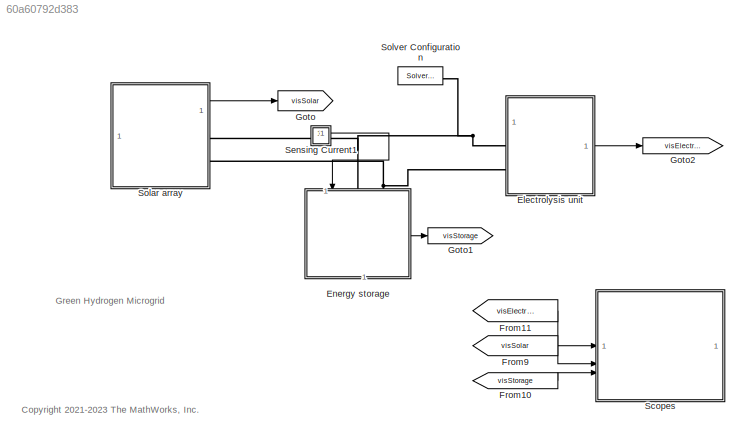
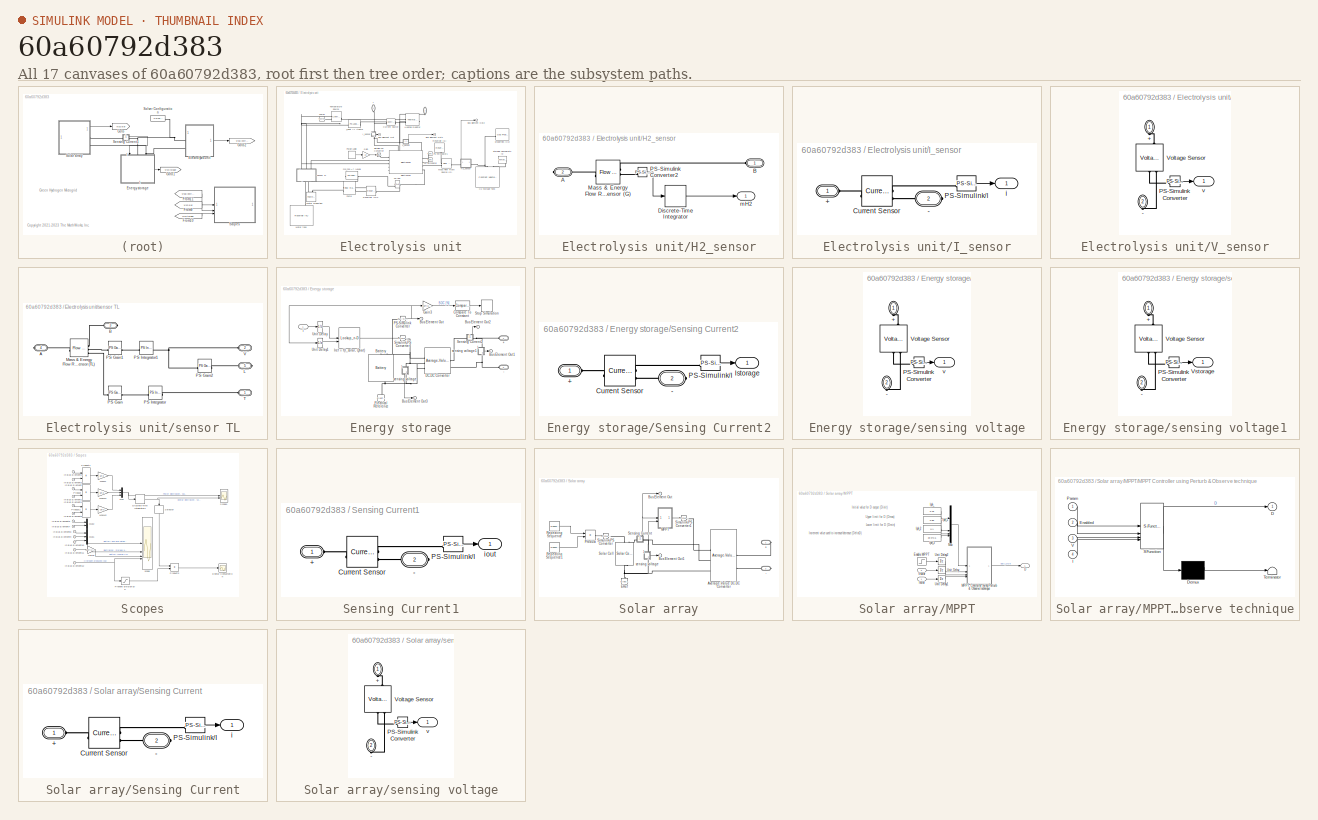
[diagram: thumbnail index - all 17 canvases of the model, root first then tree order]
MODEL slx_60a60792d383
KIND model
CONFIG AbsTol = 1e-3
CONFIG EnableMultiTasking = off
CONFIG FixedStep = Ts
CONFIG MaxStep = 0.1
CONFIG MinStep = auto
CONFIG PreLoadFcn = GreenHydrogenMicrogridData;
CONFIG RelTol = 1e-3
CONFIG SampleTimeConstraint = Unconstrained
CONFIG SolverName = FixedStepAuto
CONFIG StartTime = 0.0
CONFIG StopTime = 24*3600*7.5
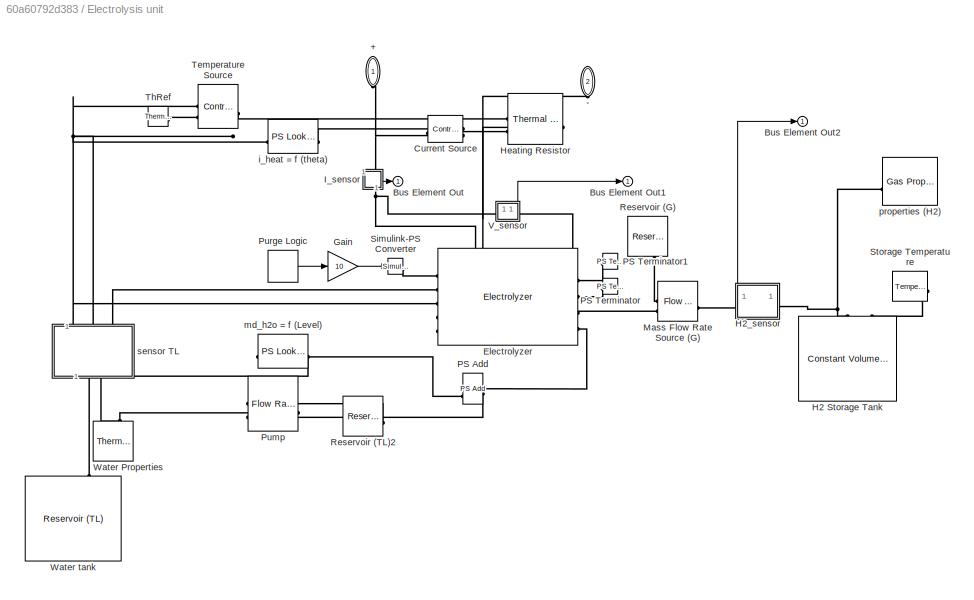
BLOCK [SubSystem] Electrolysis unit
BLOCK [PMIOPort] Electrolysis unit/+
  NameLocation = left
  Side = Left
BLOCK [PMIOPort] Electrolysis unit/-
  NameLocation = left
  Port = 2
  Side = Left
BLOCK [Outport] Electrolysis unit/Bus Element Out
BLOCK [Outport] Electrolysis unit/Bus Element Out1
BLOCK [Outport] Electrolysis unit/Bus Element Out2
BLOCK [Reference] Electrolysis unit/Current Source  REF=fl_lib/Electrical/Electrical Sources/Controlled Current
Source
  SourceBlock = fl_lib/Electrical/Electrical Sources/Controlled Current\nSource
  SourceType = Controlled Current\nSource
BLOCK [Reference] Electrolysis unit/Electrolyzer  REF=ee_lib/Sources/Electrolyzer
  SourceBlock = ee_lib/Sources/Electrolyzer
  SourceType = Electrolyzer
BLOCK [Gain] Electrolysis unit/Gain
  Gain = 10
BLOCK [Reference] Electrolysis unit/H2 Storage Tank  REF=fl_lib/Gas/Elements/Constant Volume
Chamber (G)
  SourceBlock = fl_lib/Gas/Elements/Constant Volume\nChamber (G)
  SourceType = Constant Volume\nChamber (G)
BLOCK [SubSystem] Electrolysis unit/H2_sensor
  PortSchema = {"entries":[{"content":{"sides":[{"content":{"connectorIds":["LConn1"]},"type":"ConnectorPlacement.EquallySpacedRectSide","uuid":"e3c1304f-b602-4c8c-83ae-2fd3882be16e"},{"content":{"connectorIds":["RConn1"],"side":"RIGHT"},"type":"ConnectorPlacement.EquallySpacedRectSide","uuid":"8d7546a0-f580-4754-b3ac-0546585847f9"},{"content":{"connectorIds":["Out1"],"side":"TOP"},"type":"ConnectorPlacement.Equ...<+251ch>  <repeated x4 — deduplicated; at blocks: H2_sensor, V_sensor, Sensing Current2, Sensing Current>
BLOCK [PMIOPort] Electrolysis unit/H2_sensor/A
  Port = 2
  Side = Right
BLOCK [PMIOPort] Electrolysis unit/H2_sensor/B
  Side = Left
BLOCK [DiscreteIntegrator] Electrolysis unit/H2_sensor/Discrete-Time Integrator
  ICPrevOutput = DiscIntNeverNeededParam
  ICPrevScaledInput = DiscIntNeverNeededParam
  InitialConditionSetting = Auto
  SampleTime = Ts
  gainval = 1/3600
BLOCK [Reference] Electrolysis unit/H2_sensor/Mass & Energy Flow Rate Sensor (G)  REF=fl_lib/Gas/Sensors/Flow Rate Sensor (G)
  SourceBlock = fl_lib/Gas/Sensors/Flow Rate Sensor (G)
  SourceType = Flow Rate Sensor (G)
BLOCK [Reference] Electrolysis unit/H2_sensor/PS-Simulink Converter2  REF=nesl_utility/PS-Simulink
Converter
  SourceBlock = nesl_utility/PS-Simulink\nConverter
  SourceType = PS-Simulink\nConverter
BLOCK [Outport] Electrolysis unit/H2_sensor/mH2
BLOCK [Reference] Electrolysis unit/Heating Resistor  REF=fl_lib/Electrical/Electrical Elements/Thermal Resistor
  AttributesFormatString = Heating \nResistor
  NameLocation = top
  SourceBlock = fl_lib/Electrical/Electrical Elements/Thermal Resistor
  SourceType = Thermal Resistor
BLOCK [SubSystem] Electrolysis unit/I_sensor
  NameLocation = left
  PortSchema = {"entries":[{"content":{"sides":[{"content":{"connectorIds":["LConn1"]},"type":"ConnectorPlacement.EquallySpacedRectSide","uuid":"e3c1304f-b602-4c8c-83ae-2fd3882be16e"},{"content":{"connectorIds":["RConn1"],"side":"RIGHT"},"type":"ConnectorPlacement.EquallySpacedRectSide","uuid":"8d7546a0-f580-4754-b3ac-0546585847f9"},{"content":{"connectorIds":[],"side":"TOP"},"type":"ConnectorPlacement.EquallySp...<+395ch>  <repeated x4 — deduplicated; at blocks: I_sensor, sensing voltage1, Sensing Current1, sensing voltage>
BLOCK [PMIOPort] Electrolysis unit/I_sensor/+
  Side = Left
BLOCK [PMIOPort] Electrolysis unit/I_sensor/-
  Port = 2
  Side = Right
BLOCK [Reference] Electrolysis unit/I_sensor/Current Sensor  REF=fl_lib/Electrical/Electrical Sensors/Current Sensor
  SourceBlock = fl_lib/Electrical/Electrical Sensors/Current Sensor
  SourceType = Current Sensor
BLOCK [Reference] Electrolysis unit/I_sensor/PS-Simulink//I  REF=nesl_utility/PS-Simulink
Converter
  SourceBlock = nesl_utility/PS-Simulink\nConverter
  SourceType = PS-Simulink\nConverter
BLOCK [Outport] Electrolysis unit/I_sensor/i
BLOCK [Reference] Electrolysis unit/Mass Flow Rate Source (G)  REF=fl_lib/Gas/Sources/Flow Rate Source (G)
  SourceBlock = fl_lib/Gas/Sources/Flow Rate Source (G)
  SourceType = Flow Rate Source (G)
BLOCK [Reference] Electrolysis unit/PS Add  REF=fl_lib/Physical Signals/Functions/PS Add
  NameLocation = top
  SourceBlock = fl_lib/Physical Signals/Functions/PS Add
  SourceType = PS Add
BLOCK [Reference] Electrolysis unit/PS Terminator  REF=fl_lib/Physical Signals/Sinks/PS Terminator
  SourceBlock = fl_lib/Physical Signals/Sinks/PS Terminator
  SourceType = PS Terminator
BLOCK [Reference] Electrolysis unit/PS Terminator1  REF=fl_lib/Physical Signals/Sinks/PS Terminator
  SourceBlock = fl_lib/Physical Signals/Sinks/PS Terminator
  SourceType = PS Terminator
BLOCK [Reference] Electrolysis unit/Pump  REF=fl_lib/Thermal Liquid/Sources/Flow Rate Source
(TL)
  SourceBlock = fl_lib/Thermal Liquid/Sources/Flow Rate Source\n(TL)
  SourceType = Flow Rate Source\n(TL)
BLOCK [DiscretePulseGenerator] Electrolysis unit/Purge Logic
  NameLocation = top
  Period = 3600*24*1
  PulseType = Time based
  PulseWidth = 15
BLOCK [Reference] Electrolysis unit/Reservoir (G)  REF=fl_lib/Gas/Elements/Reservoir (G)
  NameLocation = right
  SourceBlock = fl_lib/Gas/Elements/Reservoir (G)
  SourceType = Reservoir (G)
BLOCK [Reference] Electrolysis unit/Reservoir (TL)2  REF=fl_lib/Thermal Liquid/Elements/Reservoir (TL)
  SourceBlock = fl_lib/Thermal Liquid/Elements/Reservoir (TL)
  SourceType = Reservoir (TL)
BLOCK [Reference] Electrolysis unit/Simulink-PS Converter  REF=nesl_utility/Simulink-PS
Converter
  SourceBlock = nesl_utility/Simulink-PS\nConverter
  SourceType = Simulink-PS\nConverter
BLOCK [Reference] Electrolysis unit/Storage Temperature  REF=fl_lib/Thermal/Thermal Sources/Temperature Source
  NameLocation = top
  SourceBlock = fl_lib/Thermal/Thermal Sources/Temperature Source
  SourceType = Temperature Source
BLOCK [Reference] Electrolysis unit/Temperature Source  REF=fl_lib/Thermal/Thermal Sources/Controlled
Temperature Source
  NameLocation = top
  SourceBlock = fl_lib/Thermal/Thermal Sources/Controlled\nTemperature Source
  SourceType = Controlled\nTemperature Source
BLOCK [Reference] Electrolysis unit/ThRef  REF=fl_lib/Thermal/Thermal Elements/Thermal Reference
  SourceBlock = fl_lib/Thermal/Thermal Elements/Thermal Reference
  SourceType = Thermal Reference
BLOCK [SubSystem] Electrolysis unit/V_sensor
BLOCK [PMIOPort] Electrolysis unit/V_sensor/+
  NameLocation = left
  Side = Left
BLOCK [PMIOPort] Electrolysis unit/V_sensor/-
  NameLocation = left
  Port = 2
  Side = Right
BLOCK [Reference] Electrolysis unit/V_sensor/PS-Simulink Converter  REF=nesl_utility/PS-Simulink
Converter
  SourceBlock = nesl_utility/PS-Simulink\nConverter
  SourceType = PS-Simulink\nConverter
BLOCK [Reference] Electrolysis unit/V_sensor/Voltage Sensor  REF=fl_lib/Electrical/Electrical Sensors/Voltage Sensor
  NameLocation = right
  SourceBlock = fl_lib/Electrical/Electrical Sensors/Voltage Sensor
  SourceType = Voltage Sensor
BLOCK [Outport] Electrolysis unit/V_sensor/v
BLOCK [Reference] Electrolysis unit/Water Properties  REF=fl_lib/Thermal Liquid/Utilities/Thermal Liquid
Settings (TL)
  NameLocation = right
  SourceBlock = fl_lib/Thermal Liquid/Utilities/Thermal Liquid\nSettings (TL)
  SourceType = Thermal Liquid\nSettings (TL)
BLOCK [Reference] Electrolysis unit/Water tank  REF=fl_lib/Thermal Liquid/Elements/Reservoir (TL)
  NameLocation = right
  SourceBlock = fl_lib/Thermal Liquid/Elements/Reservoir (TL)
  SourceType = Reservoir (TL)
BLOCK [Reference] Electrolysis unit/i_heat = f (theta)  REF=fl_lib/Physical Signals/Lookup Tables/PS Lookup Table (1D)
  SourceBlock = fl_lib/Physical Signals/Lookup Tables/PS Lookup Table (1D)
  SourceType = PS Lookup Table (1D)
BLOCK [Reference] Electrolysis unit/md_h2o = f (Level)  REF=fl_lib/Physical Signals/Lookup Tables/PS Lookup Table (1D)
  SourceBlock = fl_lib/Physical Signals/Lookup Tables/PS Lookup Table (1D)
  SourceType = PS Lookup Table (1D)
BLOCK [Reference] Electrolysis unit/properties (H2)  REF=fl_lib/Gas/Utilities/Gas Properties (G)
  SourceBlock = fl_lib/Gas/Utilities/Gas Properties (G)
  SourceType = Gas Properties (G)
BLOCK [SubSystem] Electrolysis unit/sensor TL
  NameLocation = left
  PortSchema = {"entries":[{"content":{"sides":[{"content":{"connectorIds":["LConn1","LConn2"]},"type":"ConnectorPlacement.EquallySpacedRectSide","uuid":"7b98331b-f6fd-43b9-b8c3-5b84acb89757"},{"content":{"connectorIds":["RConn1","RConn2"],"side":"RIGHT"},"type":"ConnectorPlacement.EquallySpacedRectSide","uuid":"402dd483-774c-47a3-8562-2ee7de39df32"},{"content":{"connectorIds":[],"side":"TOP"},"type":"ConnectorP...<+415ch>
BLOCK [PMIOPort] Electrolysis unit/sensor TL/A
  Port = 4
  Side = Right
BLOCK [PMIOPort] Electrolysis unit/sensor TL/B
  Port = 3
  Side = Right
BLOCK [PMIOPort] Electrolysis unit/sensor TL/L
  Port = 5
  Side = Right
BLOCK [Reference] Electrolysis unit/sensor TL/Mass & Energy Flow Rate Sensor (TL)  REF=fl_lib/Thermal Liquid/Sensors/Flow Rate Sensor
(TL)
  SourceBlock = fl_lib/Thermal Liquid/Sensors/Flow Rate Sensor\n(TL)
  SourceType = Flow Rate Sensor\n(TL)
BLOCK [Reference] Electrolysis unit/sensor TL/PS Gain  REF=fl_lib/Physical Signals/Functions/PS Gain
  SourceBlock = fl_lib/Physical Signals/Functions/PS Gain
  SourceType = PS Gain
BLOCK [Reference] Electrolysis unit/sensor TL/PS Gain1  REF=fl_lib/Physical Signals/Functions/PS Gain
  SourceBlock = fl_lib/Physical Signals/Functions/PS Gain
  SourceType = PS Gain
BLOCK [Reference] Electrolysis unit/sensor TL/PS Gain2  REF=fl_lib/Physical Signals/Functions/PS Gain
  SourceBlock = fl_lib/Physical Signals/Functions/PS Gain
  SourceType = PS Gain
BLOCK [Reference] Electrolysis unit/sensor TL/PS Integrator  REF=fl_lib/Physical Signals/Linear Operators/PS Integrator
  SourceBlock = fl_lib/Physical Signals/Linear Operators/PS Integrator
  SourceType = PS Integrator
BLOCK [Reference] Electrolysis unit/sensor TL/PS Integrator1  REF=fl_lib/Physical Signals/Linear Operators/PS Integrator
  SourceBlock = fl_lib/Physical Signals/Linear Operators/PS Integrator
  SourceType = PS Integrator
BLOCK [PMIOPort] Electrolysis unit/sensor TL/T
  Side = Left
BLOCK [PMIOPort] Electrolysis unit/sensor TL/V
  Port = 2
  Side = Left
BLOCK [SubSystem] Energy storage
  PortSchema = {"entries":[{"content":{"sides":[{"content":{"connectorIds":["In1","LConn1","LConn2"]},"type":"ConnectorPlacement.EquallySpacedRectSide","uuid":"9735ae67-ee5d-404d-b05d-be32c633d108"},{"content":{"connectorIds":[],"side":"RIGHT"},"type":"ConnectorPlacement.EquallySpacedRectSide","uuid":"d60100ac-ad33-48fb-ae9c-ece9d5c3c2d8"},{"content":{"connectorIds":[],"side":"TOP"},"type":"ConnectorPlacement.Eq...<+402ch>
BLOCK [PMIOPort] Energy storage/+
  NameLocation = top
  Side = Left
BLOCK [PMIOPort] Energy storage/-
  Port = 2
  Side = Left
BLOCK [Reference] Energy storage/Battery  REF=batteryecm_lib/Battery
  NameLocation = left
  SourceBlock = batteryecm_lib/Battery
  SourceType = Battery
BLOCK [Outport] Energy storage/Bus Element Out
BLOCK [Outport] Energy storage/Bus Element Out1
BLOCK [Outport] Energy storage/Bus Element Out2
BLOCK [Outport] Energy storage/Bus Element Out3
BLOCK [Reference] Energy storage/Compare To Constant  REF=simulink/Logic and Bit
Operations/Compare
To Constant
  SourceBlock = simulink/Logic and Bit\nOperations/Compare\nTo Constant
  SourceType = Compare To Constant
BLOCK [Reference] Energy storage/DC-DC Converter  REF=ee_lib/Semiconductors &
Converters/Converters/Average-Value DC-DC
Converter
  SourceBlock = ee_lib/Semiconductors &\nConverters/Converters/Average-Value DC-DC\nConverter
  SourceType = Average-Value DC-DC\nConverter
BLOCK [Reference] Energy storage/Electrical Reference  REF=fl_lib/Electrical/Electrical Elements/Electrical Reference
  NameLocation = right
  SourceBlock = fl_lib/Electrical/Electrical Elements/Electrical Reference
  SourceType = Electrical Reference
BLOCK [Gain] Energy storage/Gain3
  Gain = 100*(1/Battery.Qn)
BLOCK [Lookup_n-D] Energy storage/Iref = f(I_solar, Qbat)
  BreakpointsForDimension1 = Operation_Ref.Isolar
  BreakpointsForDimension2 = [0 0.5 0.875 1]*Battery.Qn
  InputPortMap = u0,u1
  InternalRulePriority = Speed
  RndMeth = Simplest
  Table = [0*Operation_Ref.Ie;0.25*Operation_Ref.Ie;0.75*Operation_Ref.Ie;Operation_Ref.Ie]'
BLOCK [Reference] Energy storage/PS-Simulink Converter  REF=nesl_utility/PS-Simulink
Converter
  SourceBlock = nesl_utility/PS-Simulink\nConverter
  SourceType = PS-Simulink\nConverter
BLOCK [SubSystem] Energy storage/Sensing Current2
BLOCK [PMIOPort] Energy storage/Sensing Current2/+
  Side = Left
BLOCK [PMIOPort] Energy storage/Sensing Current2/-
  Port = 2
  Side = Right
BLOCK [Reference] Energy storage/Sensing Current2/Current Sensor  REF=fl_lib/Electrical/Electrical Sensors/Current Sensor
  SourceBlock = fl_lib/Electrical/Electrical Sensors/Current Sensor
  SourceType = Current Sensor
BLOCK [Outport] Energy storage/Sensing Current2/Istorage
BLOCK [Reference] Energy storage/Sensing Current2/PS-Simulink//I  REF=nesl_utility/PS-Simulink
Converter
  SourceBlock = nesl_utility/PS-Simulink\nConverter
  SourceType = PS-Simulink\nConverter
BLOCK [Reference] Energy storage/Simulink-PS Converter  REF=nesl_utility/Simulink-PS
Converter
  SourceBlock = nesl_utility/Simulink-PS\nConverter
  SourceType = Simulink-PS\nConverter
BLOCK [Stop] Energy storage/Stop Simulation
BLOCK [UnitDelay] Energy storage/Unit Delay
  HasFrameUpgradeWarning = on
  SampleTime = -1
BLOCK [UnitDelay] Energy storage/Unit Delay1
  HasFrameUpgradeWarning = on
  InitialCondition = Battery.Qinit
  SampleTime = -1
BLOCK [Inport] Energy storage/i
BLOCK [SubSystem] Energy storage/sensing voltage
  NameLocation = left
BLOCK [PMIOPort] Energy storage/sensing voltage/+
  NameLocation = left
  Side = Left
BLOCK [PMIOPort] Energy storage/sensing voltage/-
  NameLocation = left
  Port = 2
  Side = Right
BLOCK [Reference] Energy storage/sensing voltage/PS-Simulink Converter  REF=nesl_utility/PS-Simulink
Converter
  SourceBlock = nesl_utility/PS-Simulink\nConverter
  SourceType = PS-Simulink\nConverter
BLOCK [Reference] Energy storage/sensing voltage/Voltage Sensor  REF=fl_lib/Electrical/Electrical Sensors/Voltage Sensor
  NameLocation = right
  SourceBlock = fl_lib/Electrical/Electrical Sensors/Voltage Sensor
  SourceType = Voltage Sensor
BLOCK [Outport] Energy storage/sensing voltage/v
BLOCK [SubSystem] Energy storage/sensing voltage1
  NameLocation = left
BLOCK [PMIOPort] Energy storage/sensing voltage1/+
  NameLocation = left
  Side = Left
BLOCK [PMIOPort] Energy storage/sensing voltage1/-
  NameLocation = left
  Port = 2
  Side = Right
BLOCK [Reference] Energy storage/sensing voltage1/PS-Simulink Converter  REF=nesl_utility/PS-Simulink
Converter
  SourceBlock = nesl_utility/PS-Simulink\nConverter
  SourceType = PS-Simulink\nConverter
BLOCK [Reference] Energy storage/sensing voltage1/Voltage Sensor  REF=fl_lib/Electrical/Electrical Sensors/Voltage Sensor
  NameLocation = right
  SourceBlock = fl_lib/Electrical/Electrical Sensors/Voltage Sensor
  SourceType = Voltage Sensor
BLOCK [Outport] Energy storage/sensing voltage1/Vstorage
BLOCK [From] From10
  GotoTag = visStorage
BLOCK [From] From11
  GotoTag = visElectrolyzer
BLOCK [From] From9
  GotoTag = visSolar
BLOCK [Goto] Goto
  GotoTag = visSolar
BLOCK [Goto] Goto1
  GotoTag = visStorage
BLOCK [Goto] Goto2
  GotoTag = visElectrolyzer
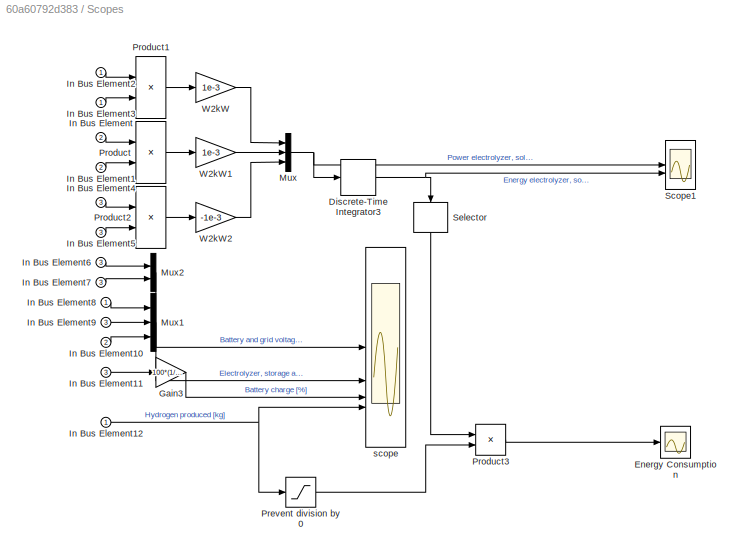
BLOCK [SubSystem] Scopes
BLOCK [DiscreteIntegrator] Scopes/Discrete-Time Integrator3
  ICPrevOutput = DiscIntNeverNeededParam
  ICPrevScaledInput = DiscIntNeverNeededParam
  InitialConditionSetting = Auto
  SampleTime = -1
  gainval = 1/3600
BLOCK [Scope] Scopes/Energy Consumption
  AttributesFormatString = [kWh / kg H2]
  Floating = off
  NumInputPorts = 1
  ScopeSpecificationString = Simulink.scopes.TimeScopeBlockCfg('CurrentConfiguration', extmgr.ConfigurationSet(extmgr.Configuration('Core','General UI',true),extmgr.Configuration('Core','Source UI',true),extmgr.Configuration('Sources','WiredSimulink',true,'DataLoggingVariableName','ScopeData1'),extmgr.Configuration('Visuals','Time Domain',true,'SerializedDisplays',{struct('MinYLimReal','-8.1004','MaxYLimReal','72.90356','YLab...<+1472ch>
BLOCK [Gain] Scopes/Gain3
  Gain = 100*(1/Battery.Qn)
BLOCK [Inport] Scopes/In Bus Element
  Port = 2
BLOCK [Inport] Scopes/In Bus Element1
  Port = 2
BLOCK [Inport] Scopes/In Bus Element10
  Port = 2
BLOCK [Inport] Scopes/In Bus Element11
  Port = 3
BLOCK [Inport] Scopes/In Bus Element12
BLOCK [Inport] Scopes/In Bus Element2
BLOCK [Inport] Scopes/In Bus Element3
BLOCK [Inport] Scopes/In Bus Element4
  Port = 3
BLOCK [Inport] Scopes/In Bus Element5
  Port = 3
BLOCK [Inport] Scopes/In Bus Element6
  Port = 3
BLOCK [Inport] Scopes/In Bus Element7
  Port = 3
BLOCK [Inport] Scopes/In Bus Element8
BLOCK [Inport] Scopes/In Bus Element9
  Port = 3
BLOCK [Mux] Scopes/Mux
  DisplayOption = bar
  Inputs = 3
BLOCK [Mux] Scopes/Mux1
  DisplayOption = bar
  Inputs = 3
BLOCK [Mux] Scopes/Mux2
  DisplayOption = bar
  Inputs = 2
BLOCK [Saturate] Scopes/Prevent division by 0
  LowerLimit = 1e-4
  UpperLimit = inf
BLOCK [Product] Scopes/Product
BLOCK [Product] Scopes/Product1
BLOCK [Product] Scopes/Product2
BLOCK [Product] Scopes/Product3
  Inputs = */
BLOCK [Scope] Scopes/Scope1
  AttributesFormatString = Power\nEnergy
  Floating = off
  NumInputPorts = 2
  ScopeSpecificationString = Simulink.scopes.TimeScopeBlockCfg('CurrentConfiguration', extmgr.ConfigurationSet(extmgr.Configuration('Core','General UI',true),extmgr.Configuration('Core','Source UI',true),extmgr.Configuration('Sources','WiredSimulink',true,'DataLoggingVariableName','ScopeData1'),extmgr.Configuration('Visuals','Time Domain',true,'SerializedDisplays',{struct('MinYLimReal','-52.76446','MaxYLimReal','231.1683','YL...<+2121ch>
BLOCK [Selector] Scopes/Selector
  IndexOptions = Index vector (dialog)
  Indices = 1
  InputPortWidth = 3
  NameLocation = left
  OutputSizes = 1
BLOCK [Gain] Scopes/W2kW
  Gain = 1e-3
BLOCK [Gain] Scopes/W2kW1
  Gain = 1e-3
BLOCK [Gain] Scopes/W2kW2
  Gain = -1e-3
BLOCK [Scope] Scopes/scope
  AttributesFormatString = V - I\nCharge [%]\nH2 [kg]
  Floating = off
  NumInputPorts = 4
  ScopeSpecificationString = Simulink.scopes.TimeScopeBlockCfg('CurrentConfiguration', extmgr.ConfigurationSet(extmgr.Configuration('Core','General UI',true),extmgr.Configuration('Core','Source UI',true),extmgr.Configuration('Sources','WiredSimulink',true),extmgr.Configuration('Visuals','Time Domain',true,'SerializedDisplays',{struct('MinYLimReal','211.75861','MaxYLimReal','247.26216','YLabelReal','','MinYLimMag','211.75861',...<+3549ch>
BLOCK [SubSystem] Sensing Current1
BLOCK [PMIOPort] Sensing Current1/+
  Side = Left
BLOCK [PMIOPort] Sensing Current1/-
  Port = 2
  Side = Right
BLOCK [Reference] Sensing Current1/Current Sensor  REF=fl_lib/Electrical/Electrical Sensors/Current Sensor
  SourceBlock = fl_lib/Electrical/Electrical Sensors/Current Sensor
  SourceType = Current Sensor
BLOCK [Reference] Sensing Current1/PS-Simulink//I  REF=nesl_utility/PS-Simulink
Converter
  SourceBlock = nesl_utility/PS-Simulink\nConverter
  SourceType = PS-Simulink\nConverter
BLOCK [Outport] Sensing Current1/iout
BLOCK [SubSystem] Solar array
BLOCK [PMIOPort] Solar array/+
  Side = Right
BLOCK [PMIOPort] Solar array/-
  Port = 2
  Side = Right
BLOCK [Reference] Solar array/Average-Value DC-DC Converter  REF=ee_lib/Semiconductors &
Converters/Converters/Average-Value DC-DC
Converter
  SourceBlock = ee_lib/Semiconductors &\nConverters/Converters/Average-Value DC-DC\nConverter
  SourceType = Average-Value DC-DC\nConverter
BLOCK [Outport] Solar array/Bus Element Out
BLOCK [Outport] Solar array/Bus Element Out1
BLOCK [Reference] Solar array/ERef  REF=fl_lib/Electrical/Electrical Elements/Electrical Reference
  NameLocation = right
  SourceBlock = fl_lib/Electrical/Electrical Elements/Electrical Reference
  SourceType = Electrical Reference
BLOCK [SubSystem] Solar array/MPPT
BLOCK [Outport] Solar array/MPPT/D
BLOCK [Step] Solar array/MPPT/Enable MPPT
  NameLocation = top
  SampleTime = 0
  Time = 0.1
BLOCK [Constant] Solar array/MPPT/Iph_
  Value = 0.45
BLOCK [Constant] Solar array/MPPT/Iph_1
  Value = 0.85
BLOCK [Constant] Solar array/MPPT/Iph_2
  Value = 0.1
BLOCK [Constant] Solar array/MPPT/Iph_3
  Value = 3e-3*0.5
BLOCK [Inport] Solar array/MPPT/Isolar
BLOCK [SubSystem] Solar array/MPPT/MPPT Controller using Perturb & Observe technique
  ErrorFcn = Stateflow.Translate.translate
  LibrarySourceBlock = simulink/User-Defined\nFunctions/MATLAB Function
  PermitHierarchicalResolution = ExplicitOnly
  SFBlockType = MATLAB Function
  TreatAsAtomicUnit = on
BLOCK [Demux] Solar array/MPPT/MPPT Controller using Perturb & Observe technique/ Demux 
  Outputs = 1
BLOCK [S-Function] Solar array/MPPT/MPPT Controller using Perturb & Observe technique/ SFunction 
  EnableBusSupport = on
  FunctionName = sf_sfun
  PortCounts = [4 2]
  SFcnIsStateOwnerBlock = off
  SFunctionDeploymentMode = off
  Tag = Stateflow S-Function 2
BLOCK [Terminator] Solar array/MPPT/MPPT Controller using Perturb & Observe technique/ Terminator 
BLOCK [Outport] Solar array/MPPT/MPPT Controller using Perturb & Observe technique/D
BLOCK [Inport] Solar array/MPPT/MPPT Controller using Perturb & Observe technique/Enabled
  Port = 2
BLOCK [Inport] Solar array/MPPT/MPPT Controller using Perturb & Observe technique/I
  Port = 4
BLOCK [Inport] Solar array/MPPT/MPPT Controller using Perturb & Observe technique/Param
BLOCK [Inport] Solar array/MPPT/MPPT Controller using Perturb & Observe technique/V
  Port = 3
BLOCK [Mux] Solar array/MPPT/Mux
  DisplayOption = bar
BLOCK [UnitDelay] Solar array/MPPT/Unit Delay
  HasFrameUpgradeWarning = on
  SampleTime = Ts
BLOCK [UnitDelay] Solar array/MPPT/Unit Delay1
  HasFrameUpgradeWarning = on
  SampleTime = Ts
BLOCK [UnitDelay] Solar array/MPPT/Unit Delay2
  HasFrameUpgradeWarning = on
  SampleTime = Ts
BLOCK [Inport] Solar array/MPPT/Vsolar
  Port = 2
BLOCK [Product] Solar array/Product
BLOCK [Reference] Solar array/Repeating Sequence  REF=simulink/Sources/Repeating
Sequence
  SourceBlock = simulink/Sources/Repeating\nSequence
  SourceType = Repeating table
BLOCK [Reference] Solar array/Repeating Sequence1  REF=simulink/Sources/Repeating
Sequence
  SourceBlock = simulink/Sources/Repeating\nSequence
  SourceType = Repeating table
BLOCK [SubSystem] Solar array/Sensing Current
BLOCK [PMIOPort] Solar array/Sensing Current/+
  Side = Left
BLOCK [PMIOPort] Solar array/Sensing Current/-
  Port = 2
  Side = Right
BLOCK [Reference] Solar array/Sensing Current/Current Sensor  REF=fl_lib/Electrical/Electrical Sensors/Current Sensor
  SourceBlock = fl_lib/Electrical/Electrical Sensors/Current Sensor
  SourceType = Current Sensor
BLOCK [Reference] Solar array/Sensing Current/PS-Simulink//I  REF=nesl_utility/PS-Simulink
Converter
  SourceBlock = nesl_utility/PS-Simulink\nConverter
  SourceType = PS-Simulink\nConverter
BLOCK [Outport] Solar array/Sensing Current/i
BLOCK [Reference] Solar array/Simulink-PS Converter  REF=nesl_utility/Simulink-PS
Converter
  SourceBlock = nesl_utility/Simulink-PS\nConverter
  SourceType = Simulink-PS\nConverter
BLOCK [Reference] Solar array/Simulink-PS Converter1  REF=nesl_utility/Simulink-PS
Converter
  SourceBlock = nesl_utility/Simulink-PS\nConverter
  SourceType = Simulink-PS\nConverter
BLOCK [Reference] Solar array/Solar Cell  REF=ee_lib/Sources/Solar Cell
  NameLocation = left
  SourceBlock = ee_lib/Sources/Solar Cell
  SourceType = Solar Cell
BLOCK [SubSystem] Solar array/sensing voltage
  NameLocation = left
BLOCK [PMIOPort] Solar array/sensing voltage/+
  NameLocation = left
  Side = Left
BLOCK [PMIOPort] Solar array/sensing voltage/-
  NameLocation = left
  Port = 2
  Side = Right
BLOCK [Reference] Solar array/sensing voltage/PS-Simulink Converter  REF=nesl_utility/PS-Simulink
Converter
  SourceBlock = nesl_utility/PS-Simulink\nConverter
  SourceType = PS-Simulink\nConverter
BLOCK [Reference] Solar array/sensing voltage/Voltage Sensor  REF=fl_lib/Electrical/Electrical Sensors/Voltage Sensor
  NameLocation = right
  SourceBlock = fl_lib/Electrical/Electrical Sensors/Voltage Sensor
  SourceType = Voltage Sensor
BLOCK [Outport] Solar array/sensing voltage/v
BLOCK [Reference] Solver Configuration  REF=nesl_utility/Solver
Configuration
  SourceBlock = nesl_utility/Solver\nConfiguration
  SourceType = Solver\nConfiguration
ANNOTATION (root): <copyright redacted>
ANNOTATION (root): Green Hydrogen Microgrid
ANNOTATION Solar array/MPPT: Increment value used to increase/decrease (DeltaD)
ANNOTATION Solar array/MPPT: Initial value for D output (Dinit)
ANNOTATION Solar array/MPPT: Lower limit for D (Dmin)
ANNOTATION Solar array/MPPT: Upper limit for D (Dmax)
LINE Electrolysis unit/Gain:1 -> Electrolysis unit/Simulink-PS Converter:1
LINE Electrolysis unit/H2_sensor/Discrete-Time Integrator:1 -> Electrolysis unit/H2_sensor/mH2:1
LINE Electrolysis unit/H2_sensor/PS-Simulink Converter2:1 -> Electrolysis unit/H2_sensor/Discrete-Time Integrator:1
LINE Electrolysis unit/H2_sensor:1 -> Electrolysis unit/Bus Element Out2:1
LINE Electrolysis unit/I_sensor/PS-Simulink//I:1 -> Electrolysis unit/I_sensor/i:1
LINE Electrolysis unit/I_sensor:1 -> Electrolysis unit/Bus Element Out:1
LINE Electrolysis unit/Purge Logic:1 -> Electrolysis unit/Gain:1
LINE Electrolysis unit/V_sensor/PS-Simulink Converter:1 -> Electrolysis unit/V_sensor/v:1
LINE Electrolysis unit/V_sensor:1 -> Electrolysis unit/Bus Element Out1:1
LINE Electrolysis unit:1 -> Goto2:1
LINE Energy storage/Compare To Constant:1 -> Energy storage/Stop Simulation:1
LINE Energy storage/Gain3:1 -> Energy storage/Compare To Constant:1
LINE Energy storage/Iref = f(I_solar, Qbat):1 -> Energy storage/Simulink-PS Converter:1
NET Energy storage/PS-Simulink Converter:1 -> Energy storage/Bus Element Out:1, Energy storage/Gain3:1, Energy storage/Unit Delay1:1
LINE Energy storage/Sensing Current2/PS-Simulink//I:1 -> Energy storage/Sensing Current2/Istorage:1
LINE Energy storage/Sensing Current2:1 -> Energy storage/Bus Element Out2:1
LINE Energy storage/Unit Delay1:1 -> Energy storage/Iref = f(I_solar, Qbat):2
LINE Energy storage/Unit Delay:1 -> Energy storage/Iref = f(I_solar, Qbat):1
LINE Energy storage/i:1 -> Energy storage/Unit Delay:1
LINE Energy storage/sensing voltage/PS-Simulink Converter:1 -> Energy storage/sensing voltage/v:1
LINE Energy storage/sensing voltage1/PS-Simulink Converter:1 -> Energy storage/sensing voltage1/Vstorage:1
LINE Energy storage/sensing voltage1:1 -> Energy storage/Bus Element Out1:1
LINE Energy storage/sensing voltage:1 -> Energy storage/Bus Element Out3:1
LINE Energy storage:1 -> Goto1:1
LINE From10:1 -> Scopes:3
LINE From11:1 -> Scopes:1
LINE From9:1 -> Scopes:2
NET Scopes/Discrete-Time Integrator3:1 -> Scopes/Scope1:2, Scopes/Selector:1
LINE Scopes/Gain3:1 -> Scopes/scope:3
LINE Scopes/In Bus Element10:1 -> Scopes/Mux1:3
LINE Scopes/In Bus Element11:1 -> Scopes/Gain3:1
NET Scopes/In Bus Element12:1 -> Scopes/Prevent division by 0:1, Scopes/scope:4
LINE Scopes/In Bus Element1:1 -> Scopes/Product:2
LINE Scopes/In Bus Element2:1 -> Scopes/Product1:1
LINE Scopes/In Bus Element3:1 -> Scopes/Product1:2
LINE Scopes/In Bus Element4:1 -> Scopes/Product2:1
LINE Scopes/In Bus Element5:1 -> Scopes/Product2:2
LINE Scopes/In Bus Element6:1 -> Scopes/Mux2:1
LINE Scopes/In Bus Element7:1 -> Scopes/Mux2:2
LINE Scopes/In Bus Element8:1 -> Scopes/Mux1:1
LINE Scopes/In Bus Element9:1 -> Scopes/Mux1:2
LINE Scopes/In Bus Element:1 -> Scopes/Product:1
LINE Scopes/Mux1:1 -> Scopes/scope:2
LINE Scopes/Mux2:1 -> Scopes/scope:1
NET Scopes/Mux:1 -> Scopes/Discrete-Time Integrator3:1, Scopes/Scope1:1
LINE Scopes/Prevent division by 0:1 -> Scopes/Product3:2
LINE Scopes/Product1:1 -> Scopes/W2kW:1
LINE Scopes/Product2:1 -> Scopes/W2kW2:1
LINE Scopes/Product3:1 -> Scopes/Energy Consumption:1
LINE Scopes/Product:1 -> Scopes/W2kW1:1
LINE Scopes/Selector:1 -> Scopes/Product3:1
LINE Scopes/W2kW1:1 -> Scopes/Mux:2
LINE Scopes/W2kW2:1 -> Scopes/Mux:3
LINE Scopes/W2kW:1 -> Scopes/Mux:1
LINE Sensing Current1/PS-Simulink//I:1 -> Sensing Current1/iout:1
LINE Sensing Current1:1 -> Energy storage:1
LINE Solar array/MPPT/Enable MPPT:1 -> Solar array/MPPT/Unit Delay2:1
LINE Solar array/MPPT/Iph_1:1 -> Solar array/MPPT/Mux:2
LINE Solar array/MPPT/Iph_2:1 -> Solar array/MPPT/Mux:3
LINE Solar array/MPPT/Iph_3:1 -> Solar array/MPPT/Mux:4
LINE Solar array/MPPT/Iph_:1 -> Solar array/MPPT/Mux:1
LINE Solar array/MPPT/Isolar:1 -> Solar array/MPPT/Unit Delay1:1
LINE Solar array/MPPT/MPPT Controller using Perturb & Observe technique:1 -> Solar array/MPPT/D:1
LINE Solar array/MPPT/Mux:1 -> Solar array/MPPT/MPPT Controller using Perturb & Observe technique:1
LINE Solar array/MPPT/Unit Delay1:1 -> Solar array/MPPT/MPPT Controller using Perturb & Observe technique:4
LINE Solar array/MPPT/Unit Delay2:1 -> Solar array/MPPT/MPPT Controller using Perturb & Observe technique:2
LINE Solar array/MPPT/Unit Delay:1 -> Solar array/MPPT/MPPT Controller using Perturb & Observe technique:3
LINE Solar array/MPPT/Vsolar:1 -> Solar array/MPPT/Unit Delay:1
LINE Solar array/MPPT:1 -> Solar array/Simulink-PS Converter1:1
LINE Solar array/Product:1 -> Solar array/Simulink-PS Converter:1
LINE Solar array/Repeating Sequence1:1 -> Solar array/Product:2
LINE Solar array/Repeating Sequence:1 -> Solar array/Product:1
LINE Solar array/Sensing Current/PS-Simulink//I:1 -> Solar array/Sensing Current/i:1
NET Solar array/Sensing Current:1 -> Solar array/Bus Element Out:1, Solar array/MPPT:1
LINE Solar array/sensing voltage/PS-Simulink Converter:1 -> Solar array/sensing voltage/v:1
NET Solar array/sensing voltage:1 -> Solar array/Bus Element Out1:1, Solar array/MPPT:2
LINE Solar array:1 -> Goto:1
PNET net1: Electrolysis unit/+:RConn1 -- Electrolysis unit/Current Source:RConn2 -- Electrolysis unit/I_sensor:LConn1
PNET net2: Electrolysis unit/-:RConn1 -- Electrolysis unit/Electrolyzer:LConn5 -- Electrolysis unit/Heating Resistor:RConn1 -- Electrolysis unit/V_sensor:RConn1
PLINE Electrolysis unit/Current Source:LConn1 -- Electrolysis unit/Heating Resistor:LConn2
PLINE Electrolysis unit/Current Source:RConn1 -- Electrolysis unit/i_heat = f (theta):RConn1
PLINE Electrolysis unit/Electrolyzer:LConn1 -- Electrolysis unit/Simulink-PS Converter:RConn1
PLINE Electrolysis unit/Electrolyzer:LConn2 -- Electrolysis unit/sensor TL:LConn2
PNET net3: Electrolysis unit/Electrolyzer:LConn3 -- Electrolysis unit/Temperature Source:RConn1 -- Electrolysis unit/i_heat = f (theta):LConn1 -- Electrolysis unit/sensor TL:LConn1
PNET net4: Electrolysis unit/Electrolyzer:LConn4 -- Electrolysis unit/I_sensor:RConn1 -- Electrolysis unit/V_sensor:LConn1
PLINE Electrolysis unit/Electrolyzer:RConn1 -- Electrolysis unit/PS Terminator1:LConn1
PLINE Electrolysis unit/Electrolyzer:RConn2 -- Electrolysis unit/PS Terminator:LConn1
PLINE Electrolysis unit/Electrolyzer:RConn3 -- Electrolysis unit/Mass Flow Rate Source (G):LConn2
PLINE Electrolysis unit/Electrolyzer:RConn4 -- Electrolysis unit/PS Add:LConn1
PNET net5: Electrolysis unit/H2 Storage Tank:LConn1 -- Electrolysis unit/H2_sensor:LConn1 -- Electrolysis unit/properties (H2):RConn1
PLINE Electrolysis unit/H2 Storage Tank:LConn2 -- Electrolysis unit/Storage Temperature:LConn1
PLINE Electrolysis unit/H2_sensor/A:RConn1 -- Electrolysis unit/H2_sensor/Mass & Energy Flow Rate Sensor (G):LConn1
PLINE Electrolysis unit/H2_sensor/B:RConn1 -- Electrolysis unit/H2_sensor/Mass & Energy Flow Rate Sensor (G):RConn1
PLINE Electrolysis unit/H2_sensor/Mass & Energy Flow Rate Sensor (G):RConn2 -- Electrolysis unit/H2_sensor/PS-Simulink Converter2:LConn1
PLINE Electrolysis unit/H2_sensor:RConn1 -- Electrolysis unit/Mass Flow Rate Source (G):RConn1
PLINE Electrolysis unit/Heating Resistor:LConn1 -- Electrolysis unit/Temperature Source:LConn1
PLINE Electrolysis unit/I_sensor/+:RConn1 -- Electrolysis unit/I_sensor/Current Sensor:LConn1
PLINE Electrolysis unit/I_sensor/-:RConn1 -- Electrolysis unit/I_sensor/Current Sensor:RConn2
PLINE Electrolysis unit/I_sensor/Current Sensor:RConn1 -- Electrolysis unit/I_sensor/PS-Simulink//I:LConn1
PLINE Electrolysis unit/Mass Flow Rate Source (G):LConn1 -- Electrolysis unit/Reservoir (G):LConn1
PLINE Electrolysis unit/PS Add:LConn2 -- Electrolysis unit/md_h2o = f (Level):RConn1
PLINE Electrolysis unit/PS Add:RConn1 -- Electrolysis unit/Pump:LConn2
PLINE Electrolysis unit/Pump:LConn1 -- Electrolysis unit/Reservoir (TL)2:LConn1
PNET net6: Electrolysis unit/Pump:RConn1 -- Electrolysis unit/Water Properties:RConn1 -- Electrolysis unit/sensor TL:RConn2
PLINE Electrolysis unit/Temperature Source:RConn2 -- Electrolysis unit/ThRef:LConn1
PLINE Electrolysis unit/V_sensor/+:RConn1 -- Electrolysis unit/V_sensor/Voltage Sensor:LConn1
PLINE Electrolysis unit/V_sensor/-:RConn1 -- Electrolysis unit/V_sensor/Voltage Sensor:RConn2
PLINE Electrolysis unit/V_sensor/PS-Simulink Converter:LConn1 -- Electrolysis unit/V_sensor/Voltage Sensor:RConn1
PLINE Electrolysis unit/Water tank:LConn1 -- Electrolysis unit/sensor TL:RConn1
PLINE Electrolysis unit/md_h2o = f (Level):LConn1 -- Electrolysis unit/sensor TL:RConn3
PLINE Electrolysis unit/sensor TL/A:RConn1 -- Electrolysis unit/sensor TL/Mass & Energy Flow Rate Sensor (TL):LConn1
PLINE Electrolysis unit/sensor TL/B:RConn1 -- Electrolysis unit/sensor TL/Mass & Energy Flow Rate Sensor (TL):RConn1
PLINE Electrolysis unit/sensor TL/L:RConn1 -- Electrolysis unit/sensor TL/PS Gain2:RConn1
PLINE Electrolysis unit/sensor TL/Mass & Energy Flow Rate Sensor (TL):RConn2 -- Electrolysis unit/sensor TL/PS Gain1:LConn1
PLINE Electrolysis unit/sensor TL/Mass & Energy Flow Rate Sensor (TL):RConn3 -- Electrolysis unit/sensor TL/PS Gain:LConn1
PLINE Electrolysis unit/sensor TL/PS Gain1:RConn1 -- Electrolysis unit/sensor TL/PS Integrator1:LConn1
PNET net7: Electrolysis unit/sensor TL/PS Gain2:LConn1 -- Electrolysis unit/sensor TL/PS Integrator1:RConn1 -- Electrolysis unit/sensor TL/V:RConn1
PLINE Electrolysis unit/sensor TL/PS Gain:RConn1 -- Electrolysis unit/sensor TL/PS Integrator:LConn1
PLINE Electrolysis unit/sensor TL/PS Integrator:RConn1 -- Electrolysis unit/sensor TL/T:RConn1
PNET net8: Electrolysis unit:LConn1 -- Energy storage:LConn1 -- Sensing Current1:RConn1 -- Solver Configuration:RConn1
PNET net9: Electrolysis unit:LConn2 -- Energy storage:LConn2 -- Solar array:RConn2
PNET net10: Energy storage/+:RConn1 -- Energy storage/Sensing Current2:RConn1 -- Energy storage/sensing voltage1:LConn1
PNET net11: Energy storage/-:RConn1 -- Energy storage/DC-DC Converter:RConn2 -- Energy storage/sensing voltage1:RConn1
PNET net12: Energy storage/Battery:LConn1 -- Energy storage/DC-DC Converter:LConn2 -- Energy storage/sensing voltage:LConn1
PLINE Energy storage/Battery:LConn2 -- Energy storage/PS-Simulink Converter:LConn1
PNET net13: Energy storage/Battery:RConn1 -- Energy storage/DC-DC Converter:LConn3 -- Energy storage/Electrical Reference:LConn1 -- Energy storage/sensing voltage:RConn1
PLINE Energy storage/DC-DC Converter:LConn1 -- Energy storage/Simulink-PS Converter:RConn1
PLINE Energy storage/DC-DC Converter:RConn1 -- Energy storage/Sensing Current2:LConn1
PLINE Energy storage/Sensing Current2/+:RConn1 -- Energy storage/Sensing Current2/Current Sensor:LConn1
PLINE Energy storage/Sensing Current2/-:RConn1 -- Energy storage/Sensing Current2/Current Sensor:RConn2
PLINE Energy storage/Sensing Current2/Current Sensor:RConn1 -- Energy storage/Sensing Current2/PS-Simulink//I:LConn1
PLINE Energy storage/sensing voltage/+:RConn1 -- Energy storage/sensing voltage/Voltage Sensor:LConn1
PLINE Energy storage/sensing voltage/-:RConn1 -- Energy storage/sensing voltage/Voltage Sensor:RConn2
PLINE Energy storage/sensing voltage/PS-Simulink Converter:LConn1 -- Energy storage/sensing voltage/Voltage Sensor:RConn1
PLINE Energy storage/sensing voltage1/+:RConn1 -- Energy storage/sensing voltage1/Voltage Sensor:LConn1
PLINE Energy storage/sensing voltage1/-:RConn1 -- Energy storage/sensing voltage1/Voltage Sensor:RConn2
PLINE Energy storage/sensing voltage1/PS-Simulink Converter:LConn1 -- Energy storage/sensing voltage1/Voltage Sensor:RConn1
PLINE Sensing Current1/+:RConn1 -- Sensing Current1/Current Sensor:LConn1
PLINE Sensing Current1/-:RConn1 -- Sensing Current1/Current Sensor:RConn2
PLINE Sensing Current1/Current Sensor:RConn1 -- Sensing Current1/PS-Simulink//I:LConn1
PLINE Sensing Current1:LConn1 -- Solar array:RConn1
PLINE Solar array/+:RConn1 -- Solar array/Average-Value DC-DC Converter:RConn1
PLINE Solar array/-:RConn1 -- Solar array/Average-Value DC-DC Converter:RConn2
PLINE Solar array/Average-Value DC-DC Converter:LConn1 -- Solar array/Simulink-PS Converter1:RConn1
PNET net14: Solar array/Average-Value DC-DC Converter:LConn2 -- Solar array/Sensing Current:RConn1 -- Solar array/sensing voltage:LConn1
PNET net15: Solar array/Average-Value DC-DC Converter:LConn3 -- Solar array/ERef:LConn1 -- Solar array/Solar Cell:RConn1 -- Solar array/sensing voltage:RConn1
PLINE Solar array/Sensing Current/+:RConn1 -- Solar array/Sensing Current/Current Sensor:LConn1
PLINE Solar array/Sensing Current/-:RConn1 -- Solar array/Sensing Current/Current Sensor:RConn2
PLINE Solar array/Sensing Current/Current Sensor:RConn1 -- Solar array/Sensing Current/PS-Simulink//I:LConn1
PLINE Solar array/Sensing Current:LConn1 -- Solar array/Solar Cell:LConn2
PLINE Solar array/Simulink-PS Converter:RConn1 -- Solar array/Solar Cell:LConn1
PLINE Solar array/sensing voltage/+:RConn1 -- Solar array/sensing voltage/Voltage Sensor:LConn1
PLINE Solar array/sensing voltage/-:RConn1 -- Solar array/sensing voltage/Voltage Sensor:RConn2
PLINE Solar array/sensing voltage/PS-Simulink Converter:LConn1 -- Solar array/sensing voltage/Voltage Sensor:RConn1
note: NET lines group one-source signal fan-out (src -> all destinations, sorted); 1:1 wires keep LINE; PNET lines group multi-terminal physical nets as a canonical sorted terminal list (undirected conserving connections); 2-terminal nets keep the pairwise PLINE form
CHART Solar array/MPPT/MPPT Controller
using Perturb 
& Observe technique states=1 transitions=1
  STATE_LABEL 'eML_blk_kernel()'
  STATE_LABEL 'SCRIPT:\nfunction D  = PandO(Param, Enabled, V, I)\n\n% MPPT controller based on the Perturb & Observe algorithm.\n\n% D output = Duty cycle of the boost converter (value between 0 and 1)\n%\n% Enabled input = 1 to enable the MPPT controller\n% V input = PV array terminal voltage (V)\n% I input = PV array current (A)\n%\n% Param input:\nDinit = Param(1);  %Initial value for D output\nDmax = Param(2);   %Maximu...<+709ch>'
CHART  states=0 transitions=0
